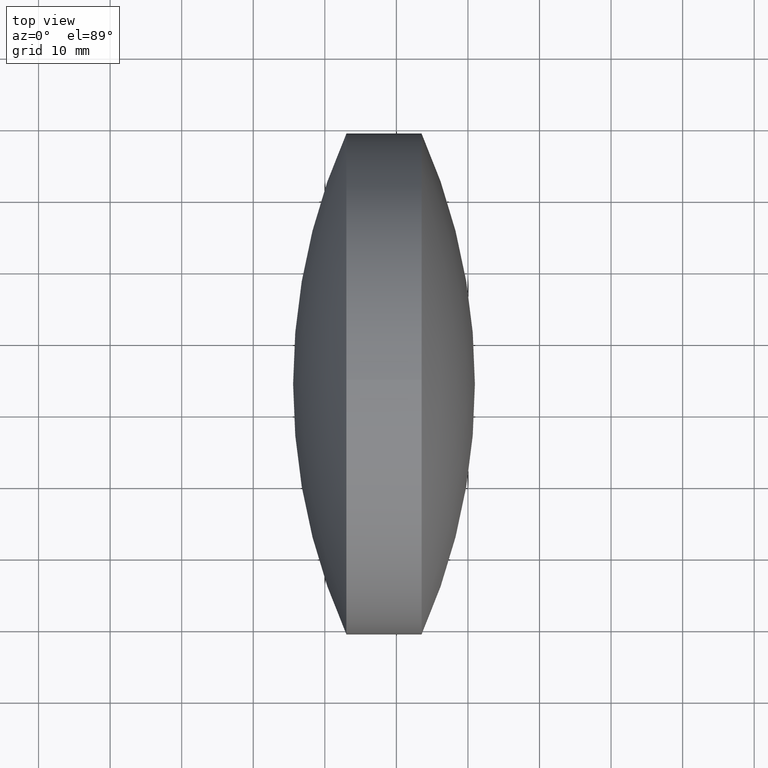
[diagram: clean part render]
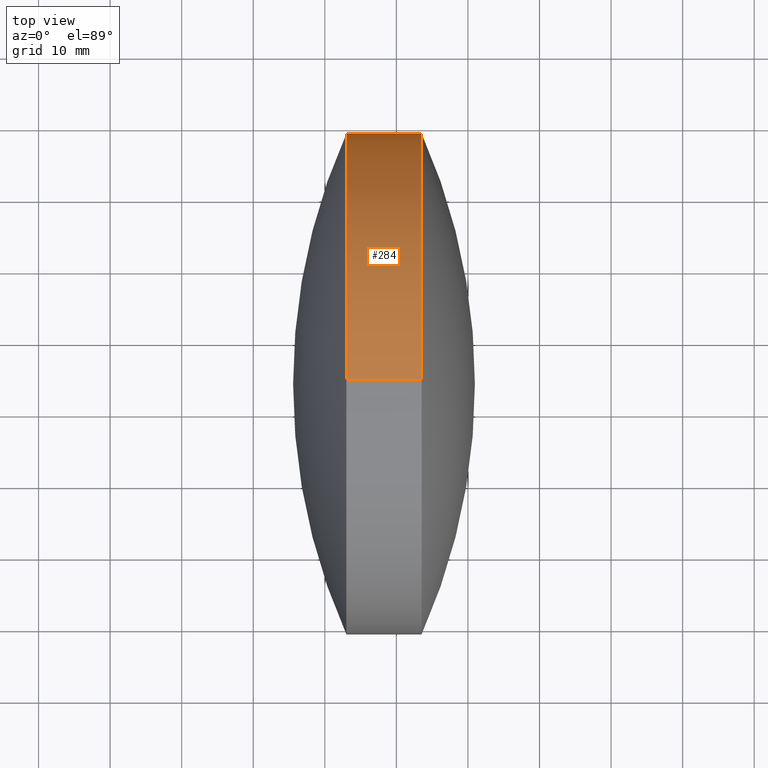
[diagram: same view with one face highlighted and labeled with its STEP entity id]
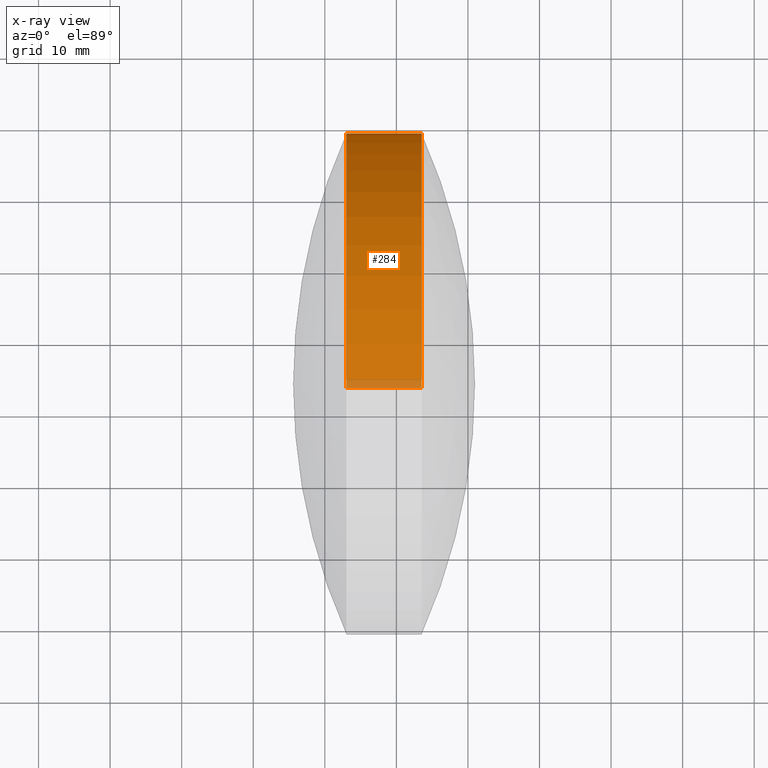
[diagram: x-ray of the same camera — body ghosted, the highlighted face saturated]
A machine part, top view. The second image highlights one B-rep face of the part: STEP entity #284.
The next image is the same camera in x-ray: the body ghosted, the highlighted face saturated — about 3% of this face is hidden behind the body in this view.
In plain terms, the highlighted cylindrical surface (partial cylindrical patch) has radius 35 mm, axis along (-1, -0, -0).
Its self-contained STEP definition (entity closure, byte-faithful):
#8 = DIRECTION ( 'NONE',  ( -1.000000000000000000, -0.0000000000000000000, -0.0000000000000000000 ) ) ;
#11 = EDGE_CURVE ( 'NONE', #267, #221, #209, .T. ) ;
#16 = VERTEX_POINT ( 'NONE', #143 ) ;
#31 = DIRECTION ( 'NONE',  ( 0.0000000000000000000, 0.0000000000000000000, 1.000000000000000000 ) ) ;
#32 = DIRECTION ( 'NONE',  ( -1.000000000000000000, -0.0000000000000000000, -0.0000000000000000000 ) ) ;
#35 = CARTESIAN_POINT ( 'NONE',  ( 222.8966066484798600, 133.9814138434226200, -35.00000000000000000 ) ) ;
#39 = DIRECTION ( 'NONE',  ( -1.000000000000000000, -0.0000000000000000000, -0.0000000000000000000 ) ) ;
#44 = LINE ( 'NONE', #95, #295 ) ;
#54 = EDGE_CURVE ( 'NONE', #233, #94, #260, .T. ) ;
#62 = CARTESIAN_POINT ( 'NONE',  ( 243.5206127648180300, 133.9814138434226200, 0.0000000000000000000 ) ) ;
#67 = CARTESIAN_POINT ( 'NONE',  ( 243.5206127648180300, 168.9814138434226400, 4.286263797015734100E-015 ) ) ;
#71 = ORIENTED_EDGE ( 'NONE', *, *, #210, .F. ) ;
#89 = DIRECTION ( 'NONE',  ( 0.0000000000000000000, 0.0000000000000000000, 1.000000000000000000 ) ) ;
#94 = VERTEX_POINT ( 'NONE', #248 ) ;
#95 = CARTESIAN_POINT ( 'NONE',  ( 222.8966066484798600, 133.9814138434226200, 35.00000000000000000 ) ) ;
#100 = ORIENTED_EDGE ( 'NONE', *, *, #54, .T. ) ;
#106 = ORIENTED_EDGE ( 'NONE', *, *, #307, .F. ) ;
#115 = CARTESIAN_POINT ( 'NONE',  ( 243.5206127648180300, 133.9814138434226200, 0.0000000000000000000 ) ) ;
#116 = EDGE_CURVE ( 'NONE', #221, #233, #187, .T. ) ;
#118 = CIRCLE ( 'NONE', #342, 35.00000000000000000 ) ;
#121 = AXIS2_PLACEMENT_3D ( 'NONE', #178, #257, #196 ) ;
#124 = CARTESIAN_POINT ( 'NONE',  ( 233.0206127648180000, 133.9814138434226200, 0.0000000000000000000 ) ) ;
#143 = CARTESIAN_POINT ( 'NONE',  ( 233.0206127648180000, 168.9814138434226200, 0.0000000000000000000 ) ) ;
#149 = CARTESIAN_POINT ( 'NONE',  ( 243.5206127648180300, 133.9814138434226200, 35.00000000000000000 ) ) ;
#174 = ORIENTED_EDGE ( 'NONE', *, *, #232, .F. ) ;
#178 = CARTESIAN_POINT ( 'NONE',  ( 222.8966066484798600, 133.9814138434226200, 0.0000000000000000000 ) ) ;
#179 = DIRECTION ( 'NONE',  ( -1.000000000000000000, -0.0000000000000000000, -0.0000000000000000000 ) ) ;
#187 = CIRCLE ( 'NONE', #238, 35.00000000000000000 ) ;
#190 = VECTOR ( 'NONE', #273, 1000.000000000000000 ) ;
#196 = DIRECTION ( 'NONE',  ( 0.0000000000000000000, 0.0000000000000000000, 1.000000000000000000 ) ) ;
#202 = AXIS2_PLACEMENT_3D ( 'NONE', #62, #8, #31 ) ;
#209 = CIRCLE ( 'NONE', #202, 35.00000000000000000 ) ;
#210 = EDGE_CURVE ( 'NONE', #267, #236, #44, .T. ) ;
#215 = CYLINDRICAL_SURFACE ( 'NONE', #121, 35.00000000000000000 ) ;
#221 = VERTEX_POINT ( 'NONE', #67 ) ;
#232 = EDGE_CURVE ( 'NONE', #16, #94, #118, .T. ) ;
#233 = VERTEX_POINT ( 'NONE', #256 ) ;
#236 = VERTEX_POINT ( 'NONE', #330 ) ;
#238 = AXIS2_PLACEMENT_3D ( 'NONE', #115, #32, #245 ) ;
#240 = ORIENTED_EDGE ( 'NONE', *, *, #11, .T. ) ;
#245 = DIRECTION ( 'NONE',  ( 0.0000000000000000000, 0.0000000000000000000, 1.000000000000000000 ) ) ;
#248 = CARTESIAN_POINT ( 'NONE',  ( 233.0206127648180000, 133.9814138434226200, -35.00000000000000000 ) ) ;
#254 = DIRECTION ( 'NONE',  ( 0.0000000000000000000, 0.0000000000000000000, 1.000000000000000000 ) ) ;
#256 = CARTESIAN_POINT ( 'NONE',  ( 243.5206127648180300, 133.9814138434226200, -35.00000000000000000 ) ) ;
#257 = DIRECTION ( 'NONE',  ( -1.000000000000000000, -0.0000000000000000000, -0.0000000000000000000 ) ) ;
#260 = LINE ( 'NONE', #35, #190 ) ;
#267 = VERTEX_POINT ( 'NONE', #149 ) ;
#273 = DIRECTION ( 'NONE',  ( -1.000000000000000000, -0.0000000000000000000, -0.0000000000000000000 ) ) ;
#278 = AXIS2_PLACEMENT_3D ( 'NONE', #328, #179, #254 ) ;
#284 = ADVANCED_FACE ( 'NONE', ( #316 ), #215, .T. ) ;
#286 = EDGE_LOOP ( 'NONE', ( #319, #100, #174, #106, #71, #240 ) ) ;
#295 = VECTOR ( 'NONE', #39, 1000.000000000000000 ) ;
#302 = CIRCLE ( 'NONE', #278, 35.00000000000000000 ) ;
#307 = EDGE_CURVE ( 'NONE', #236, #16, #302, .T. ) ;
#316 = FACE_OUTER_BOUND ( 'NONE', #286, .T. ) ;
#319 = ORIENTED_EDGE ( 'NONE', *, *, #116, .T. ) ;
#328 = CARTESIAN_POINT ( 'NONE',  ( 233.0206127648180000, 133.9814138434226200, 0.0000000000000000000 ) ) ;
#329 = DIRECTION ( 'NONE',  ( -1.000000000000000000, -0.0000000000000000000, -0.0000000000000000000 ) ) ;
#330 = CARTESIAN_POINT ( 'NONE',  ( 233.0206127648180000, 133.9814138434226200, 35.00000000000000000 ) ) ;
#342 = AXIS2_PLACEMENT_3D ( 'NONE', #124, #329, #89 ) ;